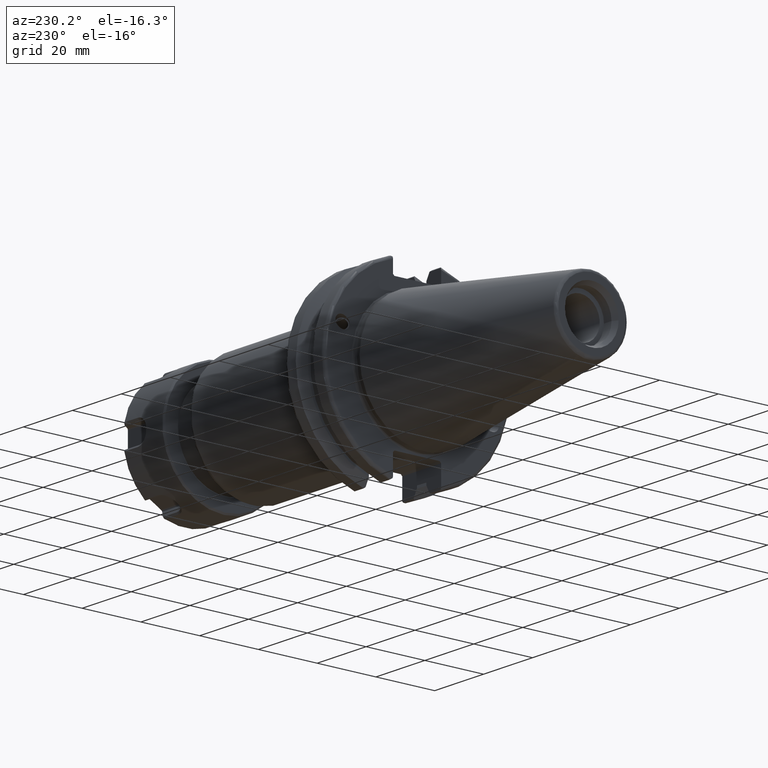
[diagram: clean part render]
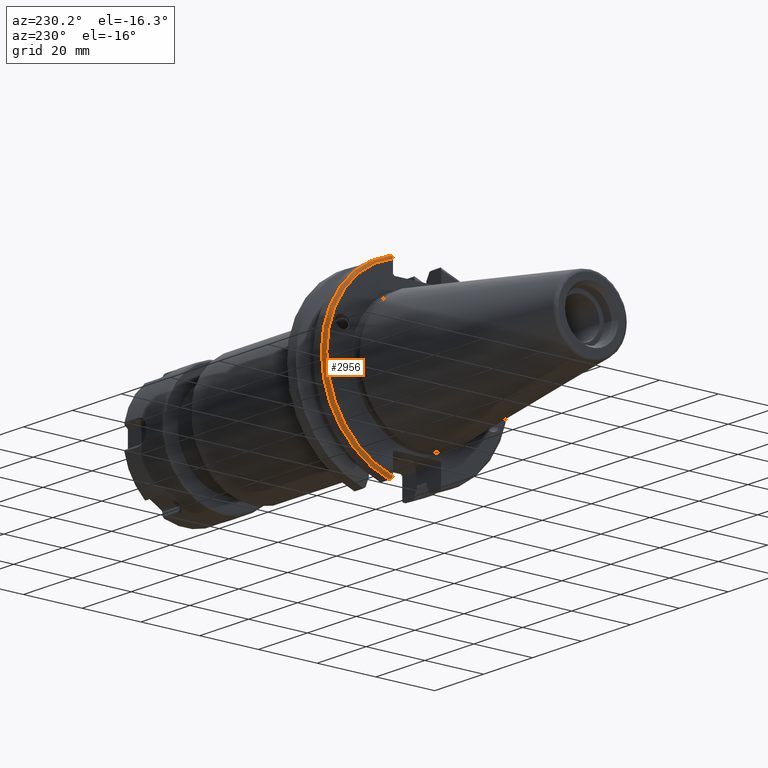
[diagram: same view with one face highlighted and labeled with its STEP entity id]
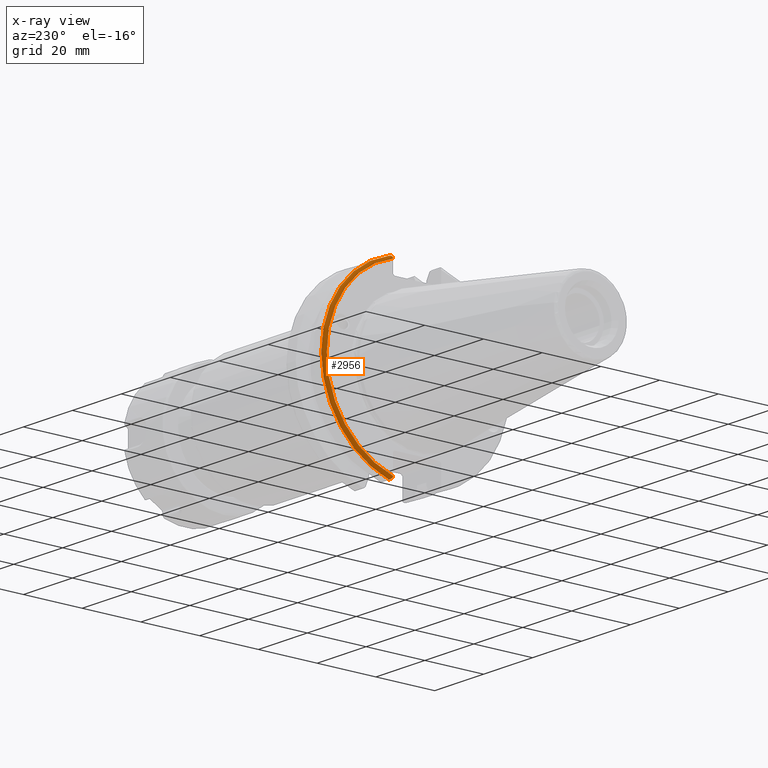
[diagram: x-ray of the same camera — body ghosted, the highlighted face saturated]
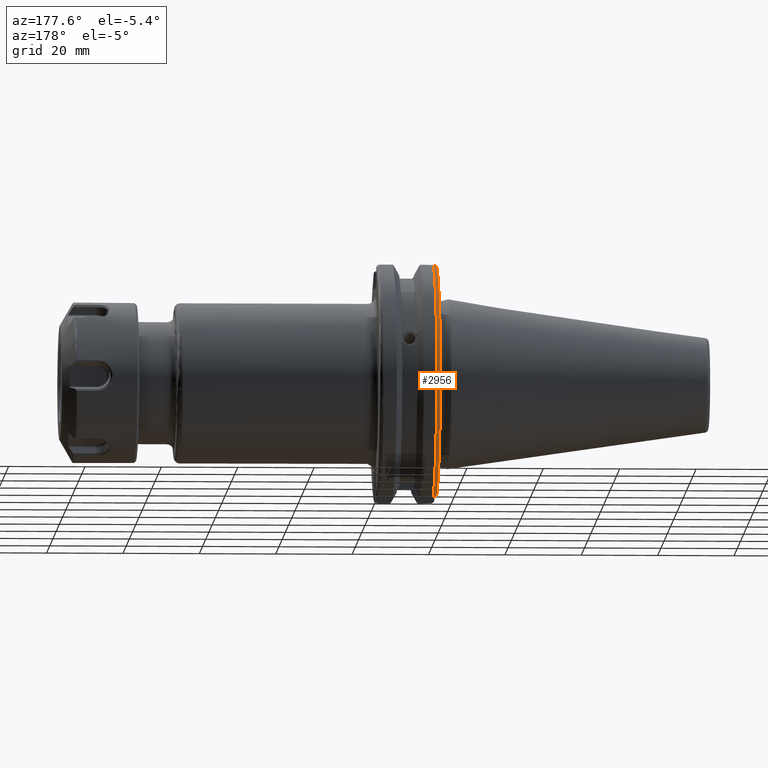
[diagram: same view with one face highlighted and labeled with its STEP entity id]
A machine part, auxiliary view. The second image highlights one B-rep face of the part: STEP entity #2956.
The next image is the same camera in x-ray: the body ghosted, the highlighted face saturated — about 0% of this face is hidden behind the body in this view.
A second angle (auxiliary view) of the same face is appended — the face is thin or edge-on in the first view.
In plain terms, the highlighted toroidal blend (fillet) surface has major radius 30.75 mm and minor (blend) radius 1 mm.
Its self-contained STEP definition (entity closure, byte-faithful):
#169=B_SPLINE_CURVE_WITH_KNOTS('',3,(#4840,#4841,#4842,#4843,#4844,#4845),
 .UNSPECIFIED.,.F.,.F.,(4,2,4),(0.0977210450333169,0.111963554372601,0.150804064902975),
 .UNSPECIFIED.);
#178=B_SPLINE_CURVE_WITH_KNOTS('',3,(#4985,#4986,#4987,#4988,#4989,#4990,
#4991,#4992),.UNSPECIFIED.,.F.,.F.,(4,2,2,4),(-0.104180282751876,-0.072978474246144,
-0.0343524753874979,0.),.UNSPECIFIED.);
#179=B_SPLINE_CURVE_WITH_KNOTS('',3,(#4995,#4996,#4997,#4998,#4999,#5000,
#5001,#5002),.UNSPECIFIED.,.F.,.F.,(4,2,2,4),(0.,0.0343524753874975,0.0729784742461445,
0.104180282751877),.UNSPECIFIED.);
#180=B_SPLINE_CURVE_WITH_KNOTS('',3,(#5003,#5004,#5005,#5006,#5007,#5008),
 .UNSPECIFIED.,.F.,.F.,(4,2,4),(0.452741154494498,0.491581665024872,0.505824174364157),
 .UNSPECIFIED.);
#243=TOROIDAL_SURFACE('',#3280,30.75,1.);
#453=FACE_OUTER_BOUND('',#635,.T.);
#635=EDGE_LOOP('',(#2322,#2323,#2324,#2325,#2326,#2327));
#1186=CIRCLE('',#3260,30.75);
#1194=CIRCLE('',#3281,31.75);
#1367=VERTEX_POINT('',#4778);
#1368=VERTEX_POINT('',#4780);
#1381=VERTEX_POINT('',#4839);
#1410=VERTEX_POINT('',#4983);
#1411=VERTEX_POINT('',#4984);
#1412=VERTEX_POINT('',#4993);
#1689=EDGE_CURVE('',#1368,#1367,#1186,.T.);
#1707=EDGE_CURVE('',#1381,#1368,#169,.T.);
#1750=EDGE_CURVE('',#1410,#1411,#178,.T.);
#1751=EDGE_CURVE('',#1411,#1412,#1194,.T.);
#1752=EDGE_CURVE('',#1412,#1381,#179,.T.);
#1753=EDGE_CURVE('',#1367,#1410,#180,.T.);
#2322=ORIENTED_EDGE('',*,*,#1750,.T.);
#2323=ORIENTED_EDGE('',*,*,#1751,.T.);
#2324=ORIENTED_EDGE('',*,*,#1752,.T.);
#2325=ORIENTED_EDGE('',*,*,#1707,.T.);
#2326=ORIENTED_EDGE('',*,*,#1689,.T.);
#2327=ORIENTED_EDGE('',*,*,#1753,.T.);
#2956=ADVANCED_FACE('',(#453),#243,.T.);
#3260=AXIS2_PLACEMENT_3D('',#4781,#3739,#3740);
#3280=AXIS2_PLACEMENT_3D('',#4982,#3814,#3815);
#3281=AXIS2_PLACEMENT_3D('',#4994,#3816,#3817);
#3739=DIRECTION('center_axis',(1.,0.,0.));
#3740=DIRECTION('ref_axis',(0.,1.,1.60812264967664E-16));
#3814=DIRECTION('center_axis',(1.,0.,0.));
#3815=DIRECTION('ref_axis',(0.,0.,-1.));
#3816=DIRECTION('center_axis',(-1.,0.,0.));
#3817=DIRECTION('ref_axis',(0.,1.,1.60812264967664E-16));
#4778=CARTESIAN_POINT('',(3.175,8.19,29.6392712461019));
#4780=CARTESIAN_POINT('',(3.175,8.18999999999999,-29.6392712461019));
#4781=CARTESIAN_POINT('Origin',(3.175,0.,0.));
#4839=CARTESIAN_POINT('',(3.31912772509028,8.19,-30.1755016258903));
#4840=CARTESIAN_POINT('Ctrl Pts',(3.31912772509028,8.19,-30.1755016258903));
#4841=CARTESIAN_POINT('Ctrl Pts',(3.29318362718666,8.19,-30.131014531546));
#4842=CARTESIAN_POINT('Ctrl Pts',(3.27103565282437,8.19,-30.0852355256475));
#4843=CARTESIAN_POINT('Ctrl Pts',(3.20451443291695,8.19,-29.9212724384851));
#4844=CARTESIAN_POINT('Ctrl Pts',(3.175,8.19,-29.7687396145364));
#4845=CARTESIAN_POINT('Ctrl Pts',(3.175,8.19,-29.6392712461019));
#4982=CARTESIAN_POINT('Origin',(4.175,0.,0.));
#4983=CARTESIAN_POINT('',(3.31912772509028,8.19,30.1755016258903));
#4984=CARTESIAN_POINT('',(4.175,8.67204822802685,30.5427254764662));
#4985=CARTESIAN_POINT('Ctrl Pts',(3.31912772509028,8.19,30.1755016258903));
#4986=CARTESIAN_POINT('Ctrl Pts',(3.36755369570114,8.2703682833078,30.2367261024977));
#4987=CARTESIAN_POINT('Ctrl Pts',(3.43232973376814,8.34909446036477,30.2966996242308));
#4988=CARTESIAN_POINT('Ctrl Pts',(3.58532758094931,8.48862804755884,30.4029961692546));
#4989=CARTESIAN_POINT('Ctrl Pts',(3.70655857052286,8.56482138642532,30.4610401774263));
#4990=CARTESIAN_POINT('Ctrl Pts',(3.92668295662254,8.6471881193939,30.5237870709558));
#4991=CARTESIAN_POINT('Ctrl Pts',(4.06049174870834,8.67204822802686,30.5427254764662));
#4992=CARTESIAN_POINT('Ctrl Pts',(4.175,8.67204822802686,30.5427254764662));
#4993=CARTESIAN_POINT('',(4.175,8.67204822802685,-30.5427254764662));
#4994=CARTESIAN_POINT('Origin',(4.175,0.,0.));
#4995=CARTESIAN_POINT('Ctrl Pts',(4.175,8.67204822802685,-30.5427254764662));
#4996=CARTESIAN_POINT('Ctrl Pts',(4.06049174870834,8.67204822802685,-30.5427254764662));
#4997=CARTESIAN_POINT('Ctrl Pts',(3.92668295662254,8.6471881193939,-30.5237870709558));
#4998=CARTESIAN_POINT('Ctrl Pts',(3.70655857052286,8.56482138642533,-30.4610401774263));
#4999=CARTESIAN_POINT('Ctrl Pts',(3.58532758094931,8.48862804755884,-30.4029961692546));
#5000=CARTESIAN_POINT('Ctrl Pts',(3.43232973376814,8.34909446036477,-30.2966996242308));
#5001=CARTESIAN_POINT('Ctrl Pts',(3.36755369570113,8.2703682833078,-30.2367261024977));
#5002=CARTESIAN_POINT('Ctrl Pts',(3.31912772509028,8.18999999999999,-30.1755016258903));
#5003=CARTESIAN_POINT('Ctrl Pts',(3.175,8.19,29.6392712461018));
#5004=CARTESIAN_POINT('Ctrl Pts',(3.175,8.19,29.7687396145364));
#5005=CARTESIAN_POINT('Ctrl Pts',(3.20451443291695,8.19,29.9212724384851));
#5006=CARTESIAN_POINT('Ctrl Pts',(3.27103565282437,8.19,30.0852355256475));
#5007=CARTESIAN_POINT('Ctrl Pts',(3.29318362718666,8.19,30.131014531546));
#5008=CARTESIAN_POINT('Ctrl Pts',(3.31912772509028,8.19,30.1755016258903));